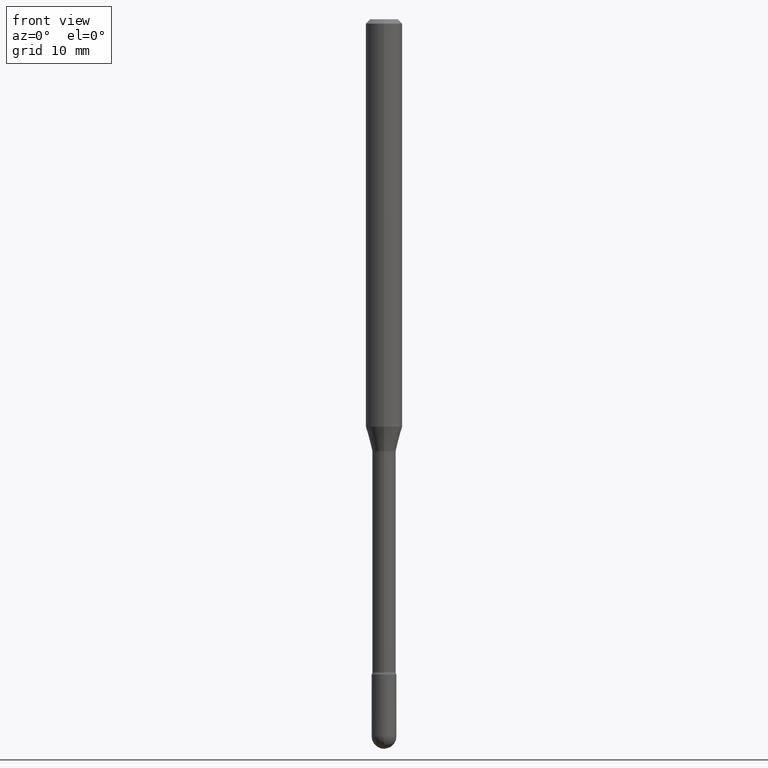
[diagram: clean part render]
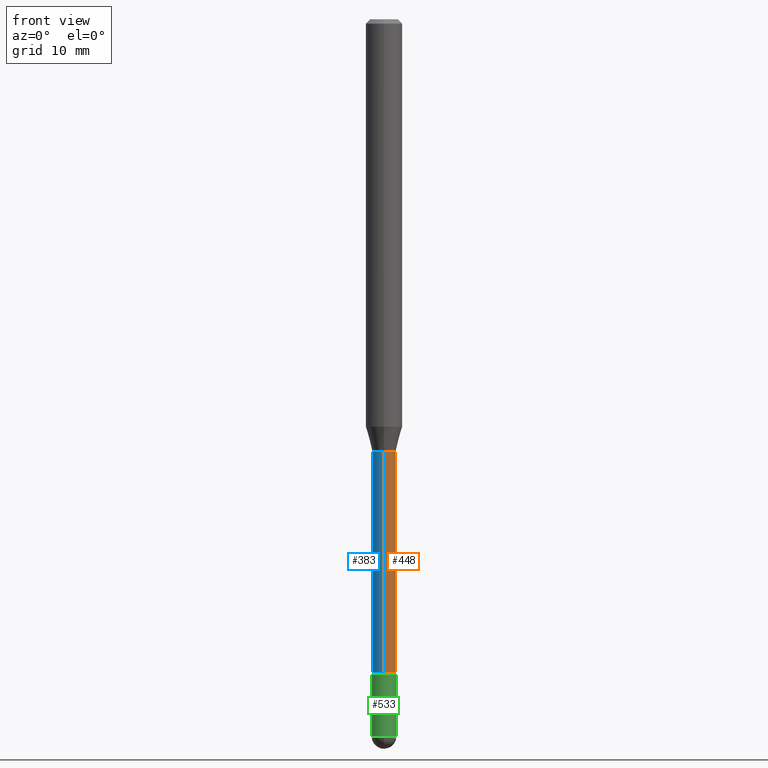
[diagram: same view with three faces highlighted in distinct colors, each labeled with its STEP entity id]
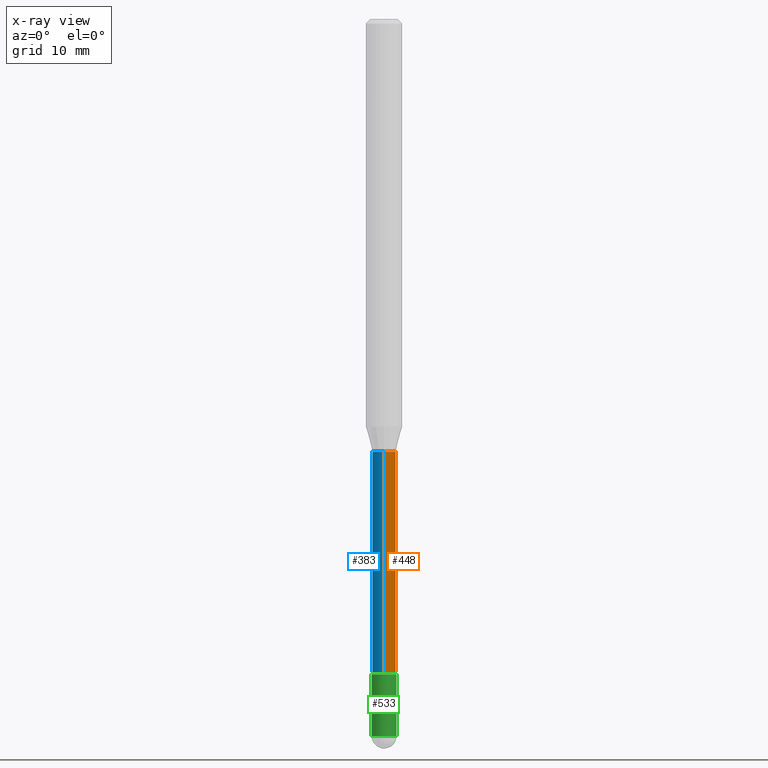
[diagram: x-ray of the same camera — body ghosted, the three highlighted faces saturated]
A machine part, front view with three faces highlighted in distinct colors.
The next image is the same camera in x-ray (body ghosted, the three faces saturated) — at least one of them is partly hidden behind the body in this view.
Their STEP definitions:

[orange] entity #448 — the highlighted cylindrical surface (edge-blend (fillet) strip) has radius 1.0147 mm, axis along (-0, 0, 1).
#3 = LINE ( 'NONE', #134, #146 ) ;
#13 = CARTESIAN_POINT ( 'NONE',  ( 5.469478734471066038E-29, -7.809363126603451872E-15, -2.236633549139569688 ) ) ;
#24 = EDGE_LOOP ( 'NONE', ( #440, #370, #565, #529 ) ) ;
#38 = CARTESIAN_POINT ( 'NONE',  ( -2.789693589735665748E-16, -0.03995000000000004103, 6.175616297763761985E-16 ) ) ;
#53 = CARTESIAN_POINT ( 'NONE',  ( -2.789693589735301393E-16, -0.03995000000000518275, -1.481974787463810728 ) ) ;
#67 = EDGE_CURVE ( 'NONE', #313, #534, #135, .T. ) ;
#76 = CARTESIAN_POINT ( 'NONE',  ( 2.838618229362148951E-16, 0.03994999999999483686, -1.481974787463811394 ) ) ;
#85 = DIRECTION ( 'NONE',  ( -6.982962677686266711E-15, -1.000000000000000000, 6.838167693777865983E-15 ) ) ;
#124 = CARTESIAN_POINT ( 'NONE',  ( -2.789693589735121927E-16, -0.03995000000000789586, -2.236633549139569688 ) ) ;
#125 = AXIS2_PLACEMENT_3D ( 'NONE', #328, #363, #164 ) ;
#134 = CARTESIAN_POINT ( 'NONE',  ( 2.838618229361602665E-16, 0.03995000000000004103, 3.385851680061159280E-16 ) ) ;
#135 = CIRCLE ( 'NONE', #125, 0.03995000000000000634 ) ;
#146 = VECTOR ( 'NONE', #438, 39.37007874015748143 ) ;
#156 = DIRECTION ( 'NONE',  ( -2.445406730385122357E-29, 3.491570234921901204E-15, 1.000000000000000000 ) ) ;
#158 = DIRECTION ( 'NONE',  ( -2.445406730385122357E-29, 3.491570234921900810E-15, 1.000000000000000000 ) ) ;
#164 = DIRECTION ( 'NONE',  ( -6.982962677686265133E-15, -1.000000000000000000, 6.838167693777879394E-15 ) ) ;
#188 = CIRCLE ( 'NONE', #247, 0.03995000000000008267 ) ;
#193 = EDGE_CURVE ( 'NONE', #216, #313, #305, .T. ) ;
#216 = VERTEX_POINT ( 'NONE', #124 ) ;
#238 = FACE_OUTER_BOUND ( 'NONE', #24, .T. ) ;
#247 = AXIS2_PLACEMENT_3D ( 'NONE', #13, #387, #85 ) ;
#305 = LINE ( 'NONE', #38, #502 ) ;
#313 = VERTEX_POINT ( 'NONE', #53 ) ;
#322 = VERTEX_POINT ( 'NONE', #359 ) ;
#328 = CARTESIAN_POINT ( 'NONE',  ( 3.624031119525064905E-29, -5.174419056813353329E-15, -1.481974787463811172 ) ) ;
#359 = CARTESIAN_POINT ( 'NONE',  ( 2.929212428171563580E-16, 0.03994999999999226947, -2.236633549139570132 ) ) ;
#363 = DIRECTION ( 'NONE',  ( -2.445406730385122357E-29, 3.491570234921901204E-15, 1.000000000000000000 ) ) ;
#370 = ORIENTED_EDGE ( 'NONE', *, *, #416, .T. ) ;
#387 = DIRECTION ( 'NONE',  ( -2.445406730385122357E-29, 3.491570234921901204E-15, 1.000000000000000000 ) ) ;
#401 = EDGE_CURVE ( 'NONE', #216, #322, #188, .T. ) ;
#403 = CYLINDRICAL_SURFACE ( 'NONE', #463, 0.03995000000000004103 ) ;
#416 = EDGE_CURVE ( 'NONE', #322, #534, #3, .T. ) ;
#438 = DIRECTION ( 'NONE',  ( -2.445406730385122357E-29, 3.491570234921900810E-15, 1.000000000000000000 ) ) ;
#440 = ORIENTED_EDGE ( 'NONE', *, *, #401, .T. ) ;
#448 = ADVANCED_FACE ( 'NONE', ( #238 ), #403, .T. ) ;
#463 = AXIS2_PLACEMENT_3D ( 'NONE', #496, #156, #552 ) ;
#496 = CARTESIAN_POINT ( 'NONE',  ( -1.169113584055446105E-44, 1.669184350826100908E-30, 4.780733988912460139E-16 ) ) ;
#502 = VECTOR ( 'NONE', #158, 39.37007874015748143 ) ;
#529 = ORIENTED_EDGE ( 'NONE', *, *, #193, .F. ) ;
#534 = VERTEX_POINT ( 'NONE', #76 ) ;
#552 = DIRECTION ( 'NONE',  ( -6.982962677686265133E-15, -1.000000000000000000, 3.491570234921901993E-15 ) ) ;
#565 = ORIENTED_EDGE ( 'NONE', *, *, #67, .F. ) ;

[blue] entity #383 — the highlighted cylindrical surface (edge-blend (fillet) strip) has radius 1.0147 mm, axis along (-0, 0, 1).
#3 = LINE ( 'NONE', #134, #146 ) ;
#11 = CARTESIAN_POINT ( 'NONE',  ( 3.624031119525064905E-29, -5.174419056813353329E-15, -1.481974787463811172 ) ) ;
#22 = DIRECTION ( 'NONE',  ( -2.445406730385122357E-29, 3.491570234921901204E-15, 1.000000000000000000 ) ) ;
#33 = EDGE_CURVE ( 'NONE', #322, #216, #414, .T. ) ;
#38 = CARTESIAN_POINT ( 'NONE',  ( -2.789693589735665748E-16, -0.03995000000000004103, 6.175616297763761985E-16 ) ) ;
#47 = DIRECTION ( 'NONE',  ( -6.982962677686265133E-15, -1.000000000000000000, 6.838167693777879394E-15 ) ) ;
#53 = CARTESIAN_POINT ( 'NONE',  ( -2.789693589735301393E-16, -0.03995000000000518275, -1.481974787463810728 ) ) ;
#59 = DIRECTION ( 'NONE',  ( -6.982962677686266711E-15, -1.000000000000000000, 6.838167693777865983E-15 ) ) ;
#76 = CARTESIAN_POINT ( 'NONE',  ( 2.838618229362148951E-16, 0.03994999999999483686, -1.481974787463811394 ) ) ;
#124 = CARTESIAN_POINT ( 'NONE',  ( -2.789693589735121927E-16, -0.03995000000000789586, -2.236633549139569688 ) ) ;
#134 = CARTESIAN_POINT ( 'NONE',  ( 2.838618229361602665E-16, 0.03995000000000004103, 3.385851680061159280E-16 ) ) ;
#146 = VECTOR ( 'NONE', #438, 39.37007874015748143 ) ;
#158 = DIRECTION ( 'NONE',  ( -2.445406730385122357E-29, 3.491570234921900810E-15, 1.000000000000000000 ) ) ;
#169 = AXIS2_PLACEMENT_3D ( 'NONE', #276, #479, #434 ) ;
#183 = CYLINDRICAL_SURFACE ( 'NONE', #169, 0.03995000000000004103 ) ;
#185 = ORIENTED_EDGE ( 'NONE', *, *, #193, .T. ) ;
#192 = ORIENTED_EDGE ( 'NONE', *, *, #375, .F. ) ;
#193 = EDGE_CURVE ( 'NONE', #216, #313, #305, .T. ) ;
#216 = VERTEX_POINT ( 'NONE', #124 ) ;
#241 = CIRCLE ( 'NONE', #343, 0.03995000000000000634 ) ;
#271 = DIRECTION ( 'NONE',  ( -2.445406730385122357E-29, 3.491570234921901204E-15, 1.000000000000000000 ) ) ;
#276 = CARTESIAN_POINT ( 'NONE',  ( -1.169113584055446105E-44, 1.669184350826100908E-30, 4.780733988912460139E-16 ) ) ;
#281 = ORIENTED_EDGE ( 'NONE', *, *, #416, .F. ) ;
#294 = AXIS2_PLACEMENT_3D ( 'NONE', #505, #22, #59 ) ;
#305 = LINE ( 'NONE', #38, #502 ) ;
#313 = VERTEX_POINT ( 'NONE', #53 ) ;
#322 = VERTEX_POINT ( 'NONE', #359 ) ;
#343 = AXIS2_PLACEMENT_3D ( 'NONE', #11, #271, #47 ) ;
#359 = CARTESIAN_POINT ( 'NONE',  ( 2.929212428171563580E-16, 0.03994999999999226947, -2.236633549139570132 ) ) ;
#375 = EDGE_CURVE ( 'NONE', #534, #313, #241, .T. ) ;
#383 = ADVANCED_FACE ( 'NONE', ( #527 ), #183, .T. ) ;
#414 = CIRCLE ( 'NONE', #294, 0.03995000000000008267 ) ;
#416 = EDGE_CURVE ( 'NONE', #322, #534, #3, .T. ) ;
#434 = DIRECTION ( 'NONE',  ( -6.982962677686265133E-15, -1.000000000000000000, 3.491570234921901993E-15 ) ) ;
#438 = DIRECTION ( 'NONE',  ( -2.445406730385122357E-29, 3.491570234921900810E-15, 1.000000000000000000 ) ) ;
#479 = DIRECTION ( 'NONE',  ( -2.445406730385122357E-29, 3.491570234921901204E-15, 1.000000000000000000 ) ) ;
#490 = EDGE_LOOP ( 'NONE', ( #281, #495, #185, #192 ) ) ;
#495 = ORIENTED_EDGE ( 'NONE', *, *, #33, .T. ) ;
#502 = VECTOR ( 'NONE', #158, 39.37007874015748143 ) ;
#505 = CARTESIAN_POINT ( 'NONE',  ( 5.469478734471066038E-29, -7.809363126603451872E-15, -2.236633549139569688 ) ) ;
#527 = FACE_OUTER_BOUND ( 'NONE', #490, .T. ) ;
#534 = VERTEX_POINT ( 'NONE', #76 ) ;

[green] entity #533 — the highlighted cylindrical surface (edge-blend (fillet) strip) has radius 1.0795 mm, axis along (-0, 0, 1).
#37 = AXIS2_PLACEMENT_3D ( 'NONE', #465, #206, #41 ) ;
#41 = DIRECTION ( 'NONE',  ( 1.000000000000000000, -6.982962677686266711E-15, 4.876176775795935793E-29 ) ) ;
#82 = CIRCLE ( 'NONE', #397, 0.04249999999999999611 ) ;
#92 = VERTEX_POINT ( 'NONE', #516 ) ;
#93 = DIRECTION ( 'NONE',  ( 1.000000000000000000, -6.982962677686273810E-15, 0.000000000000000000 ) ) ;
#98 = VERTEX_POINT ( 'NONE', #372 ) ;
#103 = CARTESIAN_POINT ( 'NONE',  ( 6.009739591199973545E-29, -8.580315390207031617E-15, -2.457500000000000018 ) ) ;
#128 = CARTESIAN_POINT ( 'NONE',  ( 6.009739591199973545E-29, -8.580315390207031617E-15, -2.457500000000000018 ) ) ;
#137 = EDGE_LOOP ( 'NONE', ( #270, #229, #395, #182, #457 ) ) ;
#141 = DIRECTION ( 'NONE',  ( -2.445468806185136597E-29, 3.491481338843145583E-15, 1.000000000000000000 ) ) ;
#159 = EDGE_CURVE ( 'NONE', #497, #98, #165, .T. ) ;
#160 = FACE_OUTER_BOUND ( 'NONE', #137, .T. ) ;
#165 = LINE ( 'NONE', #256, #444 ) ;
#182 = ORIENTED_EDGE ( 'NONE', *, *, #159, .T. ) ;
#206 = DIRECTION ( 'NONE',  ( -2.445468806185136597E-29, 3.491481338843145583E-15, 1.000000000000000000 ) ) ;
#226 = CARTESIAN_POINT ( 'NONE',  ( -0.04249999999999999611, -7.907364835256903484E-15, -2.245000000000000107 ) ) ;
#228 = EDGE_CURVE ( 'NONE', #386, #290, #513, .T. ) ;
#229 = ORIENTED_EDGE ( 'NONE', *, *, #423, .T. ) ;
#236 = CARTESIAN_POINT ( 'NONE',  ( -0.04250000000000000999, -7.907364835256903484E-15, -2.457500000000000018 ) ) ;
#249 = DIRECTION ( 'NONE',  ( -2.445468806185136877E-29, 3.491481338843145188E-15, 1.000000000000000000 ) ) ;
#256 = CARTESIAN_POINT ( 'NONE',  ( 0.04250000000000000999, -2.967759138016664042E-16, 2.072375129713273202E-30 ) ) ;
#267 = AXIS2_PLACEMENT_3D ( 'NONE', #103, #323, #362 ) ;
#270 = ORIENTED_EDGE ( 'NONE', *, *, #228, .F. ) ;
#287 = VECTOR ( 'NONE', #341, 39.37007874015748143 ) ;
#290 = VERTEX_POINT ( 'NONE', #226 ) ;
#298 = CARTESIAN_POINT ( 'NONE',  ( 0.04250000000000000999, -8.506121411756614166E-15, -2.457500000000000018 ) ) ;
#302 = DIRECTION ( 'NONE',  ( -2.445468806185136597E-29, 3.491481338843145583E-15, 1.000000000000000000 ) ) ;
#312 = EDGE_CURVE ( 'NONE', #92, #497, #422, .T. ) ;
#323 = DIRECTION ( 'NONE',  ( -2.445468806185136597E-29, 3.491481338843145583E-15, 1.000000000000000000 ) ) ;
#332 = DIRECTION ( 'NONE',  ( 1.000000000000000000, -6.982962677686276177E-15, 0.000000000000000000 ) ) ;
#341 = DIRECTION ( 'NONE',  ( -2.445468806185136877E-29, 3.491481338843145188E-15, 1.000000000000000000 ) ) ;
#362 = DIRECTION ( 'NONE',  ( 1.000000000000000000, -6.982962677686273810E-15, 0.000000000000000000 ) ) ;
#364 = AXIS2_PLACEMENT_3D ( 'NONE', #128, #141, #93 ) ;
#372 = CARTESIAN_POINT ( 'NONE',  ( 0.04249999999999999611, -8.135151519504528486E-15, -2.245000000000000107 ) ) ;
#373 = CARTESIAN_POINT ( 'NONE',  ( 5.490077469885631570E-29, -7.838375605702861835E-15, -2.245000000000000107 ) ) ;
#386 = VERTEX_POINT ( 'NONE', #236 ) ;
#395 = ORIENTED_EDGE ( 'NONE', *, *, #312, .T. ) ;
#397 = AXIS2_PLACEMENT_3D ( 'NONE', #373, #302, #332 ) ;
#422 = CIRCLE ( 'NONE', #364, 0.04250000000000000999 ) ;
#423 = EDGE_CURVE ( 'NONE', #386, #92, #462, .T. ) ;
#444 = VECTOR ( 'NONE', #249, 39.37007874015748143 ) ;
#453 = EDGE_CURVE ( 'NONE', #290, #98, #82, .T. ) ;
#457 = ORIENTED_EDGE ( 'NONE', *, *, #453, .F. ) ;
#462 = CIRCLE ( 'NONE', #267, 0.04250000000000000999 ) ;
#465 = CARTESIAN_POINT ( 'NONE',  ( 0.000000000000000000, 0.000000000000000000, 0.000000000000000000 ) ) ;
#468 = CARTESIAN_POINT ( 'NONE',  ( -0.04250000000000000999, 3.019806626980426500E-16, -2.090547413358335560E-30 ) ) ;
#497 = VERTEX_POINT ( 'NONE', #298 ) ;
#513 = LINE ( 'NONE', #468, #287 ) ;
#515 = CYLINDRICAL_SURFACE ( 'NONE', #37, 0.04250000000000000999 ) ;
#516 = CARTESIAN_POINT ( 'NONE',  ( -3.019806626979822035E-16, -0.04250000000000855871, -2.457500000000000018 ) ) ;
#533 = ADVANCED_FACE ( 'NONE', ( #160 ), #515, .T. ) ;